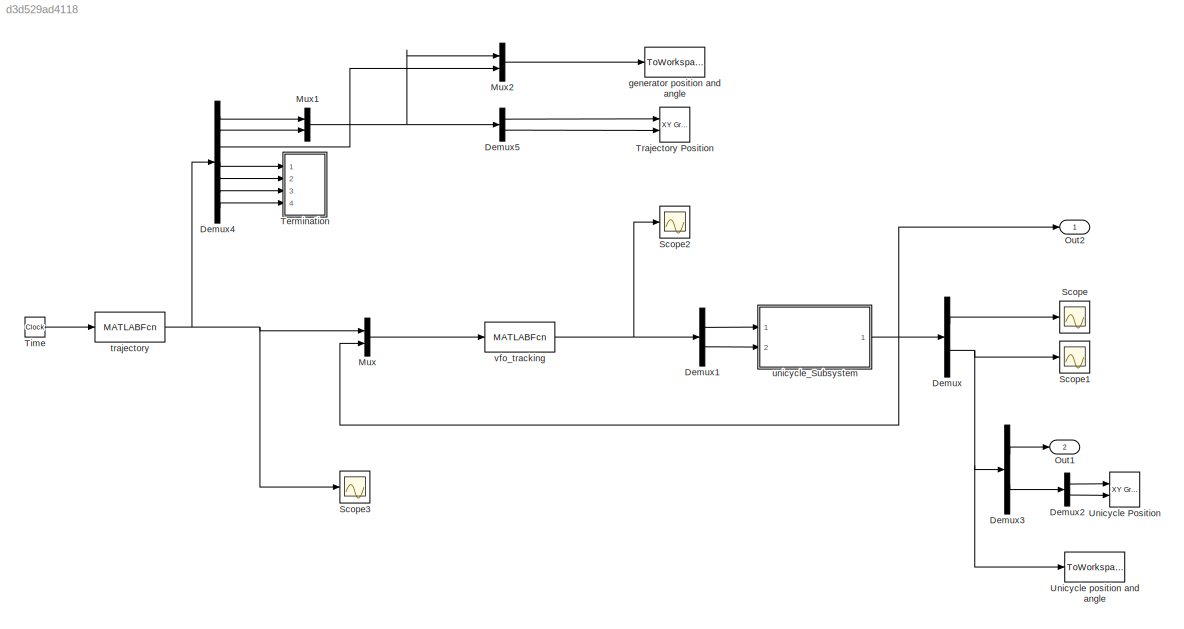
MODEL slx_d3d529ad4118
KIND model
CONFIG AbsTol = auto
CONFIG EnableMultiTasking = off
CONFIG FixedStep = .01
CONFIG MaxStep = .01
CONFIG MinStep = auto
CONFIG RelTol = 1e-3
CONFIG SampleTimeConstraint = Unconstrained
CONFIG Solver = ode45
CONFIG SolverName = ode45
CONFIG StartTime = 0.0
CONFIG StopTime = 50
BLOCK [Demux] Demux
  DisplayOption = bar
  Outputs = 2
  Ports = [1, 2]
BLOCK [Demux] Demux1
  DisplayOption = bar
  Outputs = 2
  Ports = [1, 2]
BLOCK [Demux] Demux2
  DisplayOption = bar
  Outputs = 2
  Ports = [1, 2]
BLOCK [Demux] Demux3
  DisplayOption = bar
  Outputs = [1;2]
  Ports = [1, 2]
BLOCK [Demux] Demux4
  DisplayOption = bar
  Outputs = 7
  Ports = [1, 7]
BLOCK [Demux] Demux5
  DisplayOption = bar
  Outputs = 2
  Ports = [1, 2]
BLOCK [Mux] Mux
  DisplayOption = bar
  Inputs = 2
  Ports = [2, 1]
BLOCK [Mux] Mux1
  DisplayOption = bar
  Inputs = 2
  Ports = [2, 1]
BLOCK [Mux] Mux2
  DisplayOption = bar
  Inputs = 2
  Ports = [2, 1]
BLOCK [Outport] Out1
  IconDisplay = Port number
  Port = 2
BLOCK [Outport] Out2
  IconDisplay = Port number
BLOCK [Scope] Scope
  Floating = off
  NumInputPorts = 1
  Ports = [1]
  ScopeSpecificationString = Simulink.scopes.TimeScopeBlockCfg('CurrentConfiguration', extmgr.ConfigurationSet(extmgr.Configuration('Core','General UI',true),extmgr.Configuration('Core','Source UI',true),extmgr.Configuration('Sources','WiredSimulink',true,'DataLoggingVariableName','ScopeData1'),extmgr.Configuration('Visuals','Time Domain',true,'SerializedDisplays',{struct('MinYLimReal','-3.4222','MaxYLimReal','8.94471','YLabe...<+1420ch>
BLOCK [Scope] Scope1
  Floating = off
  NumInputPorts = 1
  Ports = [1]
  ScopeSpecificationString = Simulink.scopes.TimeScopeBlockCfg('CurrentConfiguration', extmgr.ConfigurationSet(extmgr.Configuration('Core','General UI',true),extmgr.Configuration('Core','Source UI',true),extmgr.Configuration('Sources','WiredSimulink',true),extmgr.Configuration('Visuals','Time Domain',true,'SerializedDisplays',{struct('MinYLimReal','-6.04927','MaxYLimReal','27.60222','YLabelReal','','MinYLimMag','0.00000','Max...<+1387ch>
BLOCK [Scope] Scope2
  Floating = off
  NumInputPorts = 1
  Ports = [1]
  ScopeSpecificationString = Simulink.scopes.TimeScopeBlockCfg('CurrentConfiguration', extmgr.ConfigurationSet(extmgr.Configuration('Core','General UI',true),extmgr.Configuration('Core','Source UI',true),extmgr.Configuration('Sources','WiredSimulink',true,'DataLoggingVariableName','ScopeData2'),extmgr.Configuration('Visuals','Time Domain',true,'SerializedDisplays',{struct('MinYLimReal','-14.34516','MaxYLimReal','11.29321','YL...<+1425ch>
BLOCK [Scope] Scope3
  Floating = off
  NumInputPorts = 1
  Ports = [1]
  ScopeSpecificationString = Simulink.scopes.TimeScopeBlockCfg('CurrentConfiguration', extmgr.ConfigurationSet(extmgr.Configuration('Core','General UI',true),extmgr.Configuration('Core','Source UI',true),extmgr.Configuration('Sources','WiredSimulink',true,'DataLoggingVariableName','ScopeData1','DataLoggingLimitDataPoints',true,'DataLoggingSaveFormat','Array','DataLoggingDecimation','1','DataLoggingDecimateData',true),extmgr.C...<+1652ch>
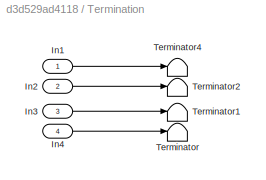
BLOCK [SubSystem] Termination
  Ports = [4]
  RequestExecContextInheritance = off
BLOCK [Inport] Termination/In1
  IconDisplay = Port number
BLOCK [Inport] Termination/In2
  IconDisplay = Port number
  Port = 2
BLOCK [Inport] Termination/In3
  IconDisplay = Port number
  Port = 3
BLOCK [Inport] Termination/In4
  IconDisplay = Port number
  Port = 4
BLOCK [Terminator] Termination/Terminator
BLOCK [Terminator] Termination/Terminator1
BLOCK [Terminator] Termination/Terminator2
BLOCK [Terminator] Termination/Terminator4
BLOCK [Clock] Time
  Decimation = 1
  DisplayTime = on
BLOCK [Reference] Trajectory Position  REF=simulink/Sinks/XY Graph
  Ports = [2]
  SourceBlock = simulink/Sinks/XY Graph
  SourceProductBaseCode = SL
  SourceProductName = Simulink
  SourceType = XY scope.
BLOCK [Reference] Unicycle Position  REF=simulink/Sinks/XY Graph
  Ports = [2]
  SourceBlock = simulink/Sinks/XY Graph
  SourceProductBaseCode = SL
  SourceProductName = Simulink
  SourceType = XY scope.
BLOCK [ToWorkspace] Unicycle position and angle
  FixptAsFi = on
  MaxDataPoints = inf
  Ports = [1]
  SampleTime = -1
  Save2DSignal = 3-D array (concatenate along third dimension)
  SaveFormat = Timeseries
  VariableName = txy
BLOCK [ToWorkspace] generator position and angle
  FixptAsFi = on
  MaxDataPoints = inf
  Ports = [1]
  SampleTime = -1
  Save2DSignal = 3-D array (concatenate along third dimension)
  SaveFormat = Timeseries
  VariableName = txyr
BLOCK [MATLABFcn] trajectory 
  MATLABFcn = trajectory
  Ports = [1, 1]
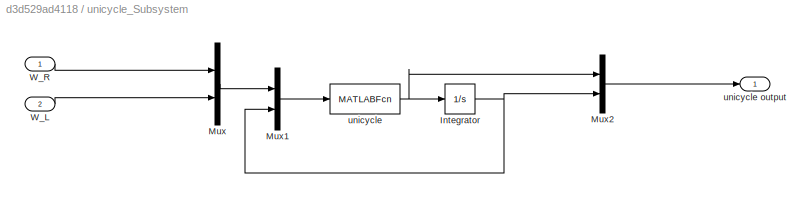
BLOCK [SubSystem] unicycle_Subsystem
  Ports = [2, 1]
  RequestExecContextInheritance = off
BLOCK [Integrator] unicycle_Subsystem/Integrator
  InitialCondition = initparam
  Ports = [1, 1]
BLOCK [Mux] unicycle_Subsystem/Mux
  DisplayOption = bar
  Inputs = 2
  Ports = [2, 1]
BLOCK [Mux] unicycle_Subsystem/Mux1
  DisplayOption = bar
  Inputs = 2
  Ports = [2, 1]
BLOCK [Mux] unicycle_Subsystem/Mux2
  DisplayOption = bar
  Inputs = 2
  Ports = [2, 1]
BLOCK [Inport] unicycle_Subsystem/W_L
  IconDisplay = Port number
  Port = 2
BLOCK [Inport] unicycle_Subsystem/W_R
  IconDisplay = Port number
BLOCK [MATLABFcn] unicycle_Subsystem/unicycle 
  MATLABFcn = unicycle
  Ports = [1, 1]
BLOCK [Outport] unicycle_Subsystem/unicycle output
  IconDisplay = Port number
BLOCK [MATLABFcn] vfo_tracking
  MATLABFcn = vfo_tracking
  Ports = [1, 1]
LINE Demux1:1 -> unicycle_Subsystem:1
LINE Demux1:2 -> unicycle_Subsystem:2
LINE Demux2:1 -> Unicycle Position:1
LINE Demux2:2 -> Unicycle Position:2
LINE Demux3:1 -> Out1:1
LINE Demux3:2 -> Demux2:1
LINE Demux4:1 -> Mux1:1
LINE Demux4:2 -> Mux1:2
LINE Demux4:3 -> Mux2:2
LINE Demux4:4 -> Termination:1
LINE Demux4:5 -> Termination:2
LINE Demux4:6 -> Termination:3
LINE Demux4:7 -> Termination:4
LINE Demux5:1 -> Trajectory Position:1
LINE Demux5:2 -> Trajectory Position:2
LINE Demux:1 -> Scope:1
NET Demux:2 -> Demux3:1, Scope1:1, Unicycle position and angle:1
NET Mux1:1 -> Demux5:1, Mux2:1
LINE Mux2:1 -> generator position and angle:1
LINE Mux:1 -> vfo_tracking:1
LINE Termination/In1:1 -> Termination/Terminator4:1
LINE Termination/In2:1 -> Termination/Terminator2:1
LINE Termination/In3:1 -> Termination/Terminator1:1
LINE Termination/In4:1 -> Termination/Terminator:1
LINE Time:1 -> trajectory :1
NET trajectory :1 -> Demux4:1, Mux:1, Scope3:1
NET unicycle_Subsystem/Integrator:1 -> unicycle_Subsystem/Mux1:2, unicycle_Subsystem/Mux2:2
LINE unicycle_Subsystem/Mux1:1 -> unicycle_Subsystem/unicycle :1
LINE unicycle_Subsystem/Mux2:1 -> unicycle_Subsystem/unicycle output:1
LINE unicycle_Subsystem/Mux:1 -> unicycle_Subsystem/Mux1:1
LINE unicycle_Subsystem/W_L:1 -> unicycle_Subsystem/Mux:2
LINE unicycle_Subsystem/W_R:1 -> unicycle_Subsystem/Mux:1
NET unicycle_Subsystem/unicycle :1 -> unicycle_Subsystem/Integrator:1, unicycle_Subsystem/Mux2:1
NET unicycle_Subsystem:1 -> Demux:1, Mux:2, Out2:1
NET vfo_tracking:1 -> Demux1:1, Scope2:1
note: NET lines group one-source signal fan-out (src -> all destinations, sorted); 1:1 wires keep LINE
